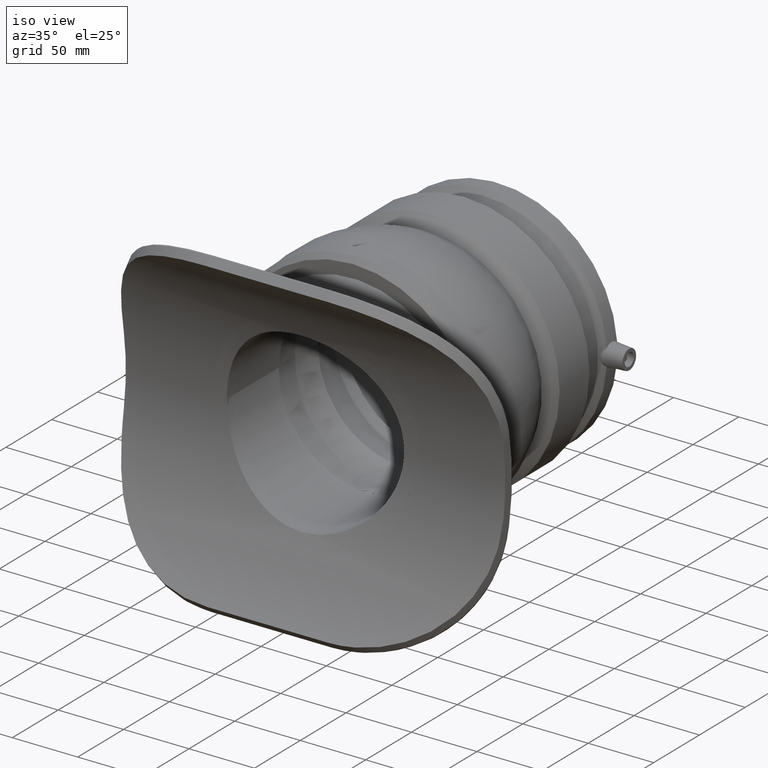
[diagram: clean part render]
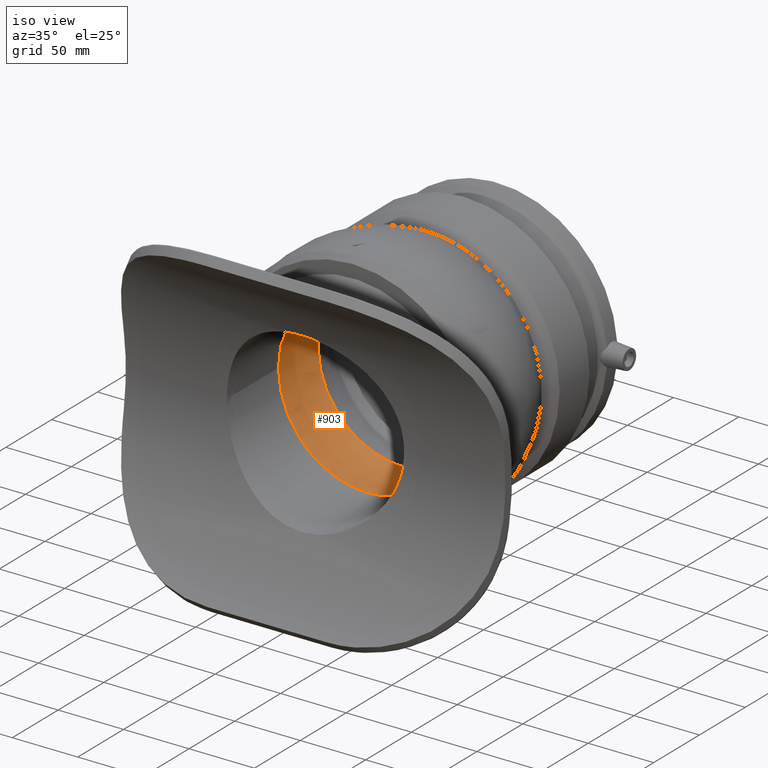
[diagram: same view with one face highlighted and labeled with its STEP entity id]
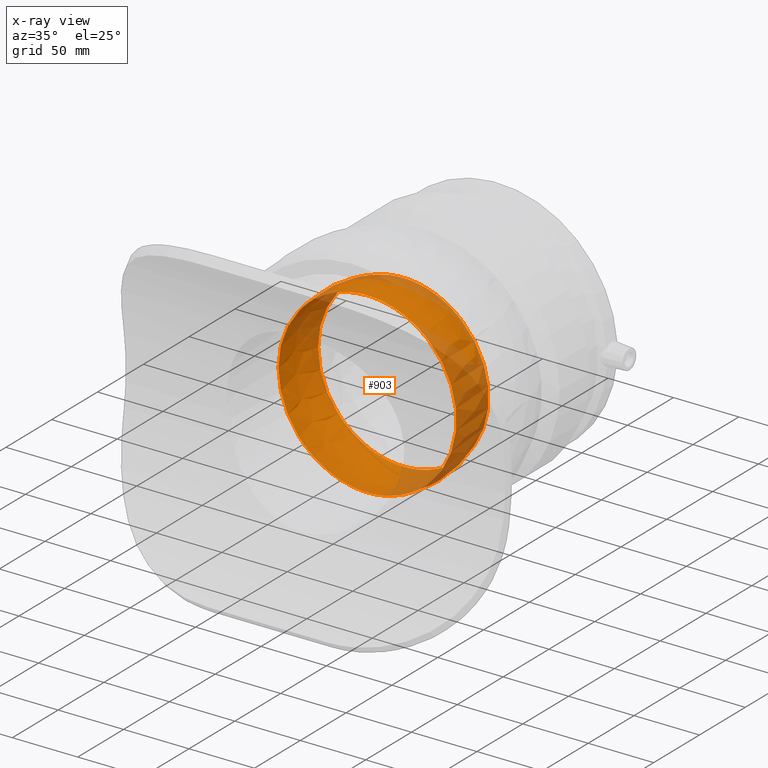
[diagram: x-ray of the same camera — body ghosted, the highlighted face saturated]
A machine part, iso view. The second image highlights one B-rep face of the part: STEP entity #903.
The next image is the same camera in x-ray: the body ghosted, the highlighted face saturated — about 38% of this face is hidden behind the body in this view.
In plain terms, the highlighted spherical surface has radius 69.6068 mm.
Its self-contained STEP definition (entity closure, byte-faithful):
#86=SPHERICAL_SURFACE('',#991,69.6067681872445);
#147=FACE_BOUND('',#293,.T.);
#148=FACE_BOUND('',#294,.T.);
#293=EDGE_LOOP('',(#666));
#294=EDGE_LOOP('',(#667));
#380=CIRCLE('',#990,65.1970095223526);
#381=CIRCLE('',#992,68.);
#445=VERTEX_POINT('',#1632);
#446=VERTEX_POINT('',#1635);
#532=EDGE_CURVE('',#445,#445,#380,.T.);
#533=EDGE_CURVE('',#446,#446,#381,.T.);
#666=ORIENTED_EDGE('',*,*,#532,.T.);
#667=ORIENTED_EDGE('',*,*,#533,.F.);
#903=ADVANCED_FACE('',(#147,#148),#86,.F.);
#990=AXIS2_PLACEMENT_3D('',#1633,#1141,#1142);
#991=AXIS2_PLACEMENT_3D('',#1634,#1143,#1144);
#992=AXIS2_PLACEMENT_3D('',#1636,#1145,#1146);
#1141=DIRECTION('center_axis',(0.,1.,0.));
#1142=DIRECTION('ref_axis',(1.,0.,0.));
#1143=DIRECTION('center_axis',(6.12323399573677E-17,0.,1.));
#1144=DIRECTION('ref_axis',(1.,0.,0.));
#1145=DIRECTION('center_axis',(0.,1.,0.));
#1146=DIRECTION('ref_axis',(1.,0.,0.));
#1632=CARTESIAN_POINT('',(-65.1970095223526,55.4108938940124,0.));
#1633=CARTESIAN_POINT('Origin',(0.,55.4108938940124,0.));
#1634=CARTESIAN_POINT('Origin',(0.,31.0295049504951,0.));
#1635=CARTESIAN_POINT('',(-68.,16.1600000000001,0.));
#1636=CARTESIAN_POINT('Origin',(0.,16.1600000000001,0.));